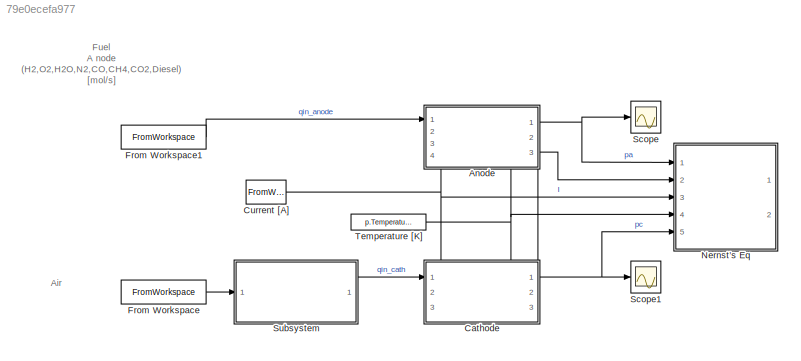
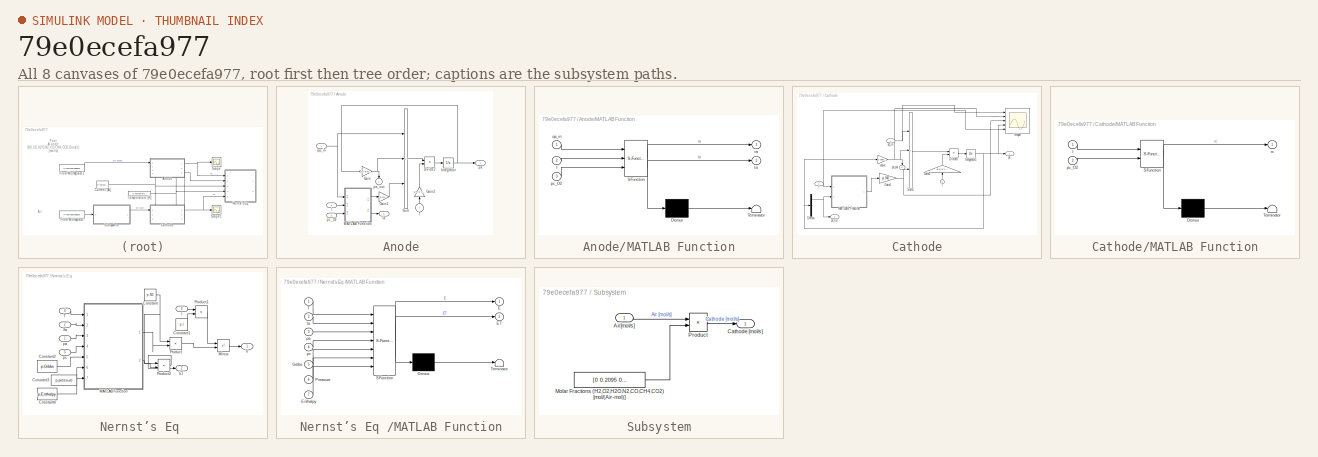
[diagram: thumbnail index - all 8 canvases of the model, root first then tree order]
MODEL slx_79e0ecefa977
KIND model
CONFIG AbsTol = auto
CONFIG EnableMultiTasking = off
CONFIG FixedStep = auto
CONFIG MaxStep = auto
CONFIG MinStep = auto
CONFIG RelTol = 1e-3
CONFIG SampleTimeConstraint = Unconstrained
CONFIG SolverName = VariableStepAuto
CONFIG StartTime = 0.0
CONFIG StopTime = NaN
BLOCK [SubSystem] Anode
  NameLocation = top
  PortSchema = {"entries":[{"content":{"sides":[{"content":{"connectorIds":["In1"]},"type":"ConnectorPlacement.EquallySpacedRectSide","uuid":"1d27f661-9cb9-482d-ac43-89e84d52643b"},{"content":{"connectorIds":["Out1","Out2","Out3"],"side":"RIGHT"},"type":"ConnectorPlacement.EquallySpacedRectSide","uuid":"62ac897d-5819-4e9c-a19f-e210851aefa2"},{"content":{"connectorIds":[],"side":"TOP"},"type":"ConnectorPlacement....<+415ch>
  Ports = [4, 3]
  RequestExecContextInheritance = off
BLOCK [Product] Anode/Divide2
  Inputs = **
  Ports = [2, 1]
BLOCK [Gain] Anode/Gain
  Gain = p.ValveConstants_an
BLOCK [Gain] Anode/Gain1
  Gain = p.N0
BLOCK [Gain] Anode/Gain2
  Gain = p.R/p.Vanode
  NameLocation = right
BLOCK [Inport] Anode/I
  Port = 2
BLOCK [Integrator] Anode/Integrator
  Ports = [1, 1]
BLOCK [SubSystem] Anode/MATLAB Function
  ErrorFcn = Stateflow.Translate.translate
  PermitHierarchicalResolution = ExplicitOnly
  Ports = [3, 2]
  RequestExecContextInheritance = off
  SFBlockType = MATLAB Function
  TreatAsAtomicUnit = on
BLOCK [Demux] Anode/MATLAB Function/ Demux 
  Outputs = 1
  Ports = [1, 1]
BLOCK [S-Function] Anode/MATLAB Function/ SFunction 
  EnableBusSupport = on
  FunctionName = sf_sfun
  PortCounts = [3 3]
  Ports = [3, 3]
  SFcnIsStateOwnerBlock = off
  SFunctionDeploymentMode = off
  Tag = Stateflow S-Function 2
BLOCK [Terminator] Anode/MATLAB Function/ Terminator 
BLOCK [Inport] Anode/MATLAB Function/I
  Port = 2
BLOCK [Outport] Anode/MATLAB Function/la
  Port = 2
BLOCK [Inport] Anode/MATLAB Function/pc_O2
  Port = 3
BLOCK [Inport] Anode/MATLAB Function/qa_in
BLOCK [Outport] Anode/MATLAB Function/ra
BLOCK [Sum] Anode/Sum
  IconShape = rectangular
  Inputs = |+-+
  Ports = [3, 1]
BLOCK [Inport] Anode/T
  NameLocation = right
  Port = 4
BLOCK [Outport] Anode/la
  Port = 3
BLOCK [Outport] Anode/pa
BLOCK [Outport] Anode/pa_out
  NameLocation = left
  Port = 2
BLOCK [Inport] Anode/pc_O2
  Port = 3
BLOCK [Inport] Anode/qa_in
BLOCK [SubSystem] Cathode
  PortSchema = {"entries":[{"content":{"sides":[{"content":{"connectorIds":["In1"]},"type":"ConnectorPlacement.EquallySpacedRectSide","uuid":"1d27f661-9cb9-482d-ac43-89e84d52643b"},{"content":{"connectorIds":["Out1","Out2"],"side":"RIGHT"},"type":"ConnectorPlacement.EquallySpacedRectSide","uuid":"62ac897d-5819-4e9c-a19f-e210851aefa2"},{"content":{"connectorIds":["In2","Out3","In3"],"side":"TOP"},"type":"Connecto...<+265ch>
  Ports = [3, 3]
  RequestExecContextInheritance = off
BLOCK [Demux] Cathode/Demux
  Outputs = 7
  Ports = [1, 7]
BLOCK [Product] Cathode/Divide3
  Inputs = **
  Ports = [2, 1]
BLOCK [Gain] Cathode/Gain1
  Gain = p.N0
BLOCK [Gain] Cathode/Gain2
  Gain = p.R/p.Vcatho
  NameLocation = right
BLOCK [Inport] Cathode/I
  Port = 2
BLOCK [Integrator] Cathode/Integrator1
  Ports = [1, 1]
BLOCK [SubSystem] Cathode/MATLAB Function
  ErrorFcn = Stateflow.Translate.translate
  PermitHierarchicalResolution = ExplicitOnly
  Ports = [2, 1]
  RequestExecContextInheritance = off
  SFBlockType = MATLAB Function
  TreatAsAtomicUnit = on
BLOCK [Demux] Cathode/MATLAB Function/ Demux 
  Outputs = 1
  Ports = [1, 1]
BLOCK [S-Function] Cathode/MATLAB Function/ SFunction 
  EnableBusSupport = on
  FunctionName = sf_sfun
  PortCounts = [2 2]
  Ports = [2, 2]
  SFcnIsStateOwnerBlock = off
  SFunctionDeploymentMode = off
  Tag = Stateflow S-Function 1
BLOCK [Terminator] Cathode/MATLAB Function/ Terminator 
BLOCK [Inport] Cathode/MATLAB Function/I
BLOCK [Inport] Cathode/MATLAB Function/pc_O2
  Port = 2
BLOCK [Outport] Cathode/MATLAB Function/rc
BLOCK [Scope] Cathode/Scope
  Floating = off
  NumInputPorts = 5
  Ports = [5]
  ScopeSpecificationString = Simulink.scopes.TimeScopeBlockCfg('CurrentConfiguration', extmgr.ConfigurationSet(extmgr.Configuration('Core','General UI',true),extmgr.Configuration('Core','Source UI',true),extmgr.Configuration('Sources','WiredSimulink',true,'DataLoggingVariableName','ScopeData3'),extmgr.Configuration('Visuals','Time Domain',true,'SerializedDisplays',{struct('MinYLimReal','-0.00435','MaxYLimReal','0.03919','YLab...<+4747ch>
BLOCK [Sum] Cathode/Sum1
  IconShape = rectangular
  Inputs = |+-+
  Ports = [3, 1]
BLOCK [Inport] Cathode/T
  NameLocation = right
  Port = 3
BLOCK [Outport] Cathode/pc
BLOCK [Outport] Cathode/pc_O2
  Port = 3
BLOCK [Outport] Cathode/pc_out
  NameLocation = left
  Port = 2
BLOCK [Inport] Cathode/qc_in
BLOCK [Gain] Cathode/valve
  Gain = p.ValveConstants_cath
BLOCK [FromWorkspace] Current [A]
  VariableName = I_signal
BLOCK [FromWorkspace] From Workspace
  VariableName = air_mol_inlet_flow
BLOCK [FromWorkspace] From Workspace1
  VariableName = anode_mol_inlet_flow
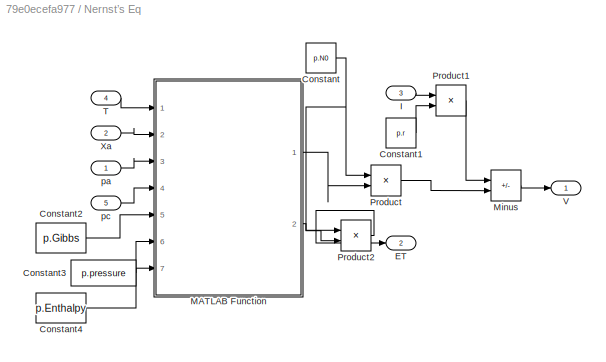
BLOCK [SubSystem] Nernst’s Eq 
  Ports = [5, 2]
  RequestExecContextInheritance = off
BLOCK [Constant] Nernst’s Eq /Constant
  Value = p.N0
BLOCK [Constant] Nernst’s Eq /Constant1
  Value = p.r
BLOCK [Constant] Nernst’s Eq /Constant2
  OutDataTypeStr = Bus:slBus1
  Value = p.Gibbs
BLOCK [Constant] Nernst’s Eq /Constant3
  Value = p.pressure
BLOCK [Constant] Nernst’s Eq /Constant4
  OutDataTypeStr = Bus:slBus1
  Value = p.Enthalpy
BLOCK [Outport] Nernst’s Eq /ET
  Port = 2
BLOCK [Inport] Nernst’s Eq /I
  Port = 3
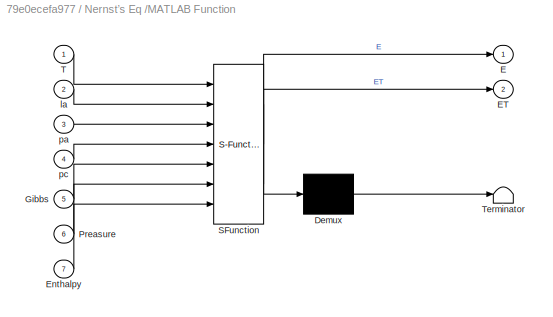
BLOCK [SubSystem] Nernst’s Eq /MATLAB Function
  ErrorFcn = Stateflow.Translate.translate
  PermitHierarchicalResolution = ExplicitOnly
  Ports = [7, 2]
  RequestExecContextInheritance = off
  SFBlockType = MATLAB Function
  TreatAsAtomicUnit = on
BLOCK [Demux] Nernst’s Eq /MATLAB Function/ Demux 
  Outputs = 1
  Ports = [1, 1]
BLOCK [S-Function] Nernst’s Eq /MATLAB Function/ SFunction 
  EnableBusSupport = on
  FunctionName = sf_sfun
  PortCounts = [7 3]
  Ports = [7, 3]
  SFcnIsStateOwnerBlock = off
  SFunctionDeploymentMode = off
  Tag = Stateflow S-Function 3
BLOCK [Terminator] Nernst’s Eq /MATLAB Function/ Terminator 
BLOCK [Outport] Nernst’s Eq /MATLAB Function/E
BLOCK [Outport] Nernst’s Eq /MATLAB Function/ET
  Port = 2
BLOCK [Inport] Nernst’s Eq /MATLAB Function/Enthalpy
  Port = 7
BLOCK [Inport] Nernst’s Eq /MATLAB Function/Gibbs
  Port = 5
BLOCK [Inport] Nernst’s Eq /MATLAB Function/Preasure
  Port = 6
BLOCK [Inport] Nernst’s Eq /MATLAB Function/T
BLOCK [Inport] Nernst’s Eq /MATLAB Function/la
  Port = 2
BLOCK [Inport] Nernst’s Eq /MATLAB Function/pa
  Port = 3
BLOCK [Inport] Nernst’s Eq /MATLAB Function/pc
  Port = 4
BLOCK [Sum] Nernst’s Eq /Minus
  IconShape = rectangular
  Inputs = -+
  Ports = [2, 1]
BLOCK [Product] Nernst’s Eq /Product
  Ports = [2, 1]
BLOCK [Product] Nernst’s Eq /Product1
  Ports = [2, 1]
BLOCK [Product] Nernst’s Eq /Product2
  Ports = [2, 1]
BLOCK [Inport] Nernst’s Eq /T
  Port = 4
BLOCK [Outport] Nernst’s Eq /V
BLOCK [Inport] Nernst’s Eq /Xa
  Port = 2
BLOCK [Inport] Nernst’s Eq /pa
BLOCK [Inport] Nernst’s Eq /pc
  Port = 5
BLOCK [Scope] Scope
  Floating = off
  NumInputPorts = 1
  Ports = [1]
  ScopeSpecificationString = Simulink.scopes.TimeScopeBlockCfg('CurrentConfiguration', extmgr.ConfigurationSet(extmgr.Configuration('Core','General UI',true),extmgr.Configuration('Core','Source UI',true),extmgr.Configuration('Sources','WiredSimulink',true,'DataLoggingVariableName','ScopeData1'),extmgr.Configuration('Visuals','Time Domain',true,'SerializedDisplays',{struct('MinYLimReal','-5.5002','MaxYLimReal','49.50178','YLab...<+1389ch>
BLOCK [Scope] Scope1
  Floating = off
  NumInputPorts = 1
  Ports = [1]
  ScopeSpecificationString = Simulink.scopes.TimeScopeBlockCfg('CurrentConfiguration', extmgr.ConfigurationSet(extmgr.Configuration('Core','General UI',true),extmgr.Configuration('Core','Source UI',true),extmgr.Configuration('Sources','WiredSimulink',true,'DataLoggingVariableName','ScopeData1'),extmgr.Configuration('Visuals','Time Domain',true,'SerializedDisplays',{struct('MinYLimReal','-7.63549','MaxYLimReal','36.27041','YLa...<+1480ch>
BLOCK [SubSystem] Subsystem
  Ports = [1, 1]
  RequestExecContextInheritance = off
BLOCK [Inport] Subsystem/Air[mol//s]
BLOCK [Outport] Subsystem/Cathode [mol//s]
BLOCK [Constant] Subsystem/Molar Fractions (H2,O2,H2O,N2,CO,CH4,CO2) [mol//(Air-mol)]
  Value = [0 0.2095 0 0.7808 0 0 0]
BLOCK [Product] Subsystem/Product
  Ports = [2, 1]
BLOCK [Constant] Temperature [K]
  Value = p.Temperature
ANNOTATION (root): Fuel A node (H2,O2,H2O,N2,CO,CH4,CO2,Diesel) [mol/s]
ANNOTATION (root): Air
LINE Anode/Divide2:1 -> Anode/Integrator:1
LINE Anode/Gain1:1 -> Anode/Sum:3
LINE Anode/Gain2:1 -> Anode/Divide2:2
NET Anode/Gain:1 -> Anode/Sum:2, Anode/pa_out:1
LINE Anode/I:1 -> Anode/MATLAB Function:2
NET Anode/Integrator:1 -> Anode/Gain:1, Anode/pa:1
LINE Anode/MATLAB Function:1 -> Anode/Gain1:1
LINE Anode/MATLAB Function:2 -> Anode/la:1
LINE Anode/Sum:1 -> Anode/Divide2:1
LINE Anode/T:1 -> Anode/Gain2:1
LINE Anode/pc_O2:1 -> Anode/MATLAB Function:3
NET Anode/qa_in:1 -> Anode/MATLAB Function:1, Anode/Sum:1
NET Anode:1 -> Nernst’s Eq :1, Scope:1
LINE Anode:3 -> Nernst’s Eq :2
NET Cathode/Demux:2 -> Cathode/MATLAB Function:2, Cathode/pc_O2:1
LINE Cathode/Divide3:1 -> Cathode/Integrator1:1
NET Cathode/Gain1:1 -> Cathode/Scope:3, Cathode/Sum1:3
LINE Cathode/Gain2:1 -> Cathode/Divide3:2
NET Cathode/I:1 -> Cathode/MATLAB Function:1, Cathode/Scope:5
NET Cathode/Integrator1:1 -> Cathode/Demux:1, Cathode/Scope:4, Cathode/pc:1, Cathode/valve:1
LINE Cathode/MATLAB Function:1 -> Cathode/Gain1:1
LINE Cathode/Sum1:1 -> Cathode/Divide3:1
LINE Cathode/T:1 -> Cathode/Gain2:1
NET Cathode/qc_in:1 -> Cathode/Scope:1, Cathode/Sum1:1
NET Cathode/valve:1 -> Cathode/Scope:2, Cathode/Sum1:2, Cathode/pc_out:1
NET Cathode:1 -> Nernst’s Eq :5, Scope1:1
LINE Cathode:3 -> Anode:3
NET Current [A]:1 -> Anode:2, Cathode:2, Nernst’s Eq :3
LINE From Workspace1:1 -> Anode:1
LINE From Workspace:1 -> Subsystem:1
LINE Nernst’s Eq /Constant1:1 -> Nernst’s Eq /Product1:2
LINE Nernst’s Eq /Constant2:1 -> Nernst’s Eq /MATLAB Function:5
LINE Nernst’s Eq /Constant3:1 -> Nernst’s Eq /MATLAB Function:6
LINE Nernst’s Eq /Constant4:1 -> Nernst’s Eq /MATLAB Function:7
NET Nernst’s Eq /Constant:1 -> Nernst’s Eq /Product2:1, Nernst’s Eq /Product:1
LINE Nernst’s Eq /I:1 -> Nernst’s Eq /Product1:1
LINE Nernst’s Eq /MATLAB Function:1 -> Nernst’s Eq /Product:2
LINE Nernst’s Eq /MATLAB Function:2 -> Nernst’s Eq /Product2:2
LINE Nernst’s Eq /Minus:1 -> Nernst’s Eq /V:1
LINE Nernst’s Eq /Product1:1 -> Nernst’s Eq /Minus:1
LINE Nernst’s Eq /Product2:1 -> Nernst’s Eq /ET:1
LINE Nernst’s Eq /Product:1 -> Nernst’s Eq /Minus:2
LINE Nernst’s Eq /T:1 -> Nernst’s Eq /MATLAB Function:1
LINE Nernst’s Eq /Xa:1 -> Nernst’s Eq /MATLAB Function:2
LINE Nernst’s Eq /pa:1 -> Nernst’s Eq /MATLAB Function:3
LINE Nernst’s Eq /pc:1 -> Nernst’s Eq /MATLAB Function:4
LINE Subsystem/Air[mol//s]:1 -> Subsystem/Product:1
LINE Subsystem/Molar Fractions (H2,O2,H2O,N2,CO,CH4,CO2) [mol//(Air-mol)]:1 -> Subsystem/Product:2
LINE Subsystem/Product:1 -> Subsystem/Cathode [mol//s]:1
LINE Subsystem:1 -> Cathode:1
NET Temperature [K]:1 -> Anode:4, Cathode:3, Nernst’s Eq :4
note: NET lines group one-source signal fan-out (src -> all destinations, sorted); 1:1 wires keep LINE
CHART Cathode/MATLAB Function states=1 transitions=1
  STATE_LABEL 'eML_blk_kernel()'
  STATE_LABEL 'SCRIPT:\nfunction rc = fcn(I,pc_O2)\n\n%l = qc_in/sum(qc_in);\n\n% l_H2  = l(1);\n% l_O2  = l(2);\n% l_H2O = l(3);\n% l_N2  = l(4);\n% l_CO  = l(5);\n% l_CH4 = l(6);\n% l_CO2 = l(7);\n%\n% alpha_H_2 = l_H2;\n% alpha_CO  = l_CO;\n% alpha_CH4 = l_CH4;\n% alpha_O2  = 0.5*(l_H2+l_CO+4*l_CH4);\n% beta_H2O  = l_H2 + 2*l_CH4;\n% beta_CO2  = l_CO + 2*l_CH4;\n%\nF = 96485.3329; \n\n% r_H2  = -alpha_H_2*I;\n% r_CO  = -alpha_CO*I;...<+156ch>'
CHART Anode/MATLAB Function states=1 transitions=1
  STATE_LABEL 'eML_blk_kernel()'
  STATE_LABEL 'SCRIPT:\nfunction [ra,la] = fcn(qa_in,I,pc_O2)\n\nla = qa_in/sum(qa_in);\n\nl_H2  = la(1);\n%l_O2  = l(2);\n%l_H2O = l(3);\n%l_N2  = l(4);\nl_CO  = la(5);\nl_CH4 = la(6);\n%l_CO2 = l(7);\n%\nalpha_H2 = l_H2;\nalpha_CO  = l_CO;\nalpha_CH4 = l_CH4;\n%alpha_O2  = 0.5*(l_H2+l_CO+4*l_CH4);\nbeta_H2O  = l_H2 + 2*l_CH4;\nbeta_CO2  = l_CO + l_CH4;\n%\nF = 96485.3329; \nne = 2*(l_H2 + l_CO + 4*l_CH4);\nI = I/(F*ne);\n\nr_H2  = -a...<+171ch>'
CHART Nernst’s Eq /MATLAB Function states=1 transitions=1
  STATE_LABEL 'eML_blk_kernel()'
  STATE_LABEL 'SCRIPT:\nfunction [E,ET]= fcn(T, la,pa,pc,Gibbs,Preasure, Enthalpy)\n%\n\nl_H2  = la(1);\nl_CO  = la(5);\nl_CH4 = la(6);\n%\nalpha_H2 = l_H2;\nalpha_CO  = l_CO;\nalpha_CH4 = l_CH4;\nalpha_O2  = 0.5*( l_H2 + l_CO + 4*l_CH4);\nbeta_H2O  = l_H2 + 2*l_CH4;\nbeta_CO2  = l_CO + l_CH4;\n\n%\npa_H2 = pa(1);\npa_O2 = pa(2);\npa_H2O= pa(3);\npa_CO = pa(5);\npa_CH4= pa(6);\npa_CO2= pa(7);\n%\npc_H2 = pc(1);\npc_O2 = pc(2);\npc_H2O= ...<+1008ch>'
CHART  states=0 transitions=0
CHART  states=0 transitions=0
CHART  states=0 transitions=0
